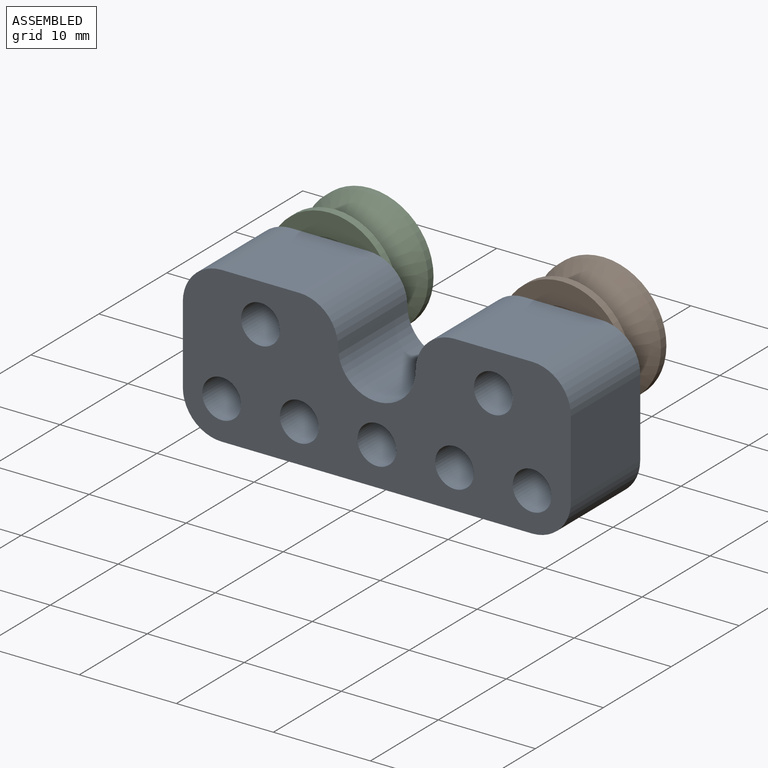
[diagram: assembled view]
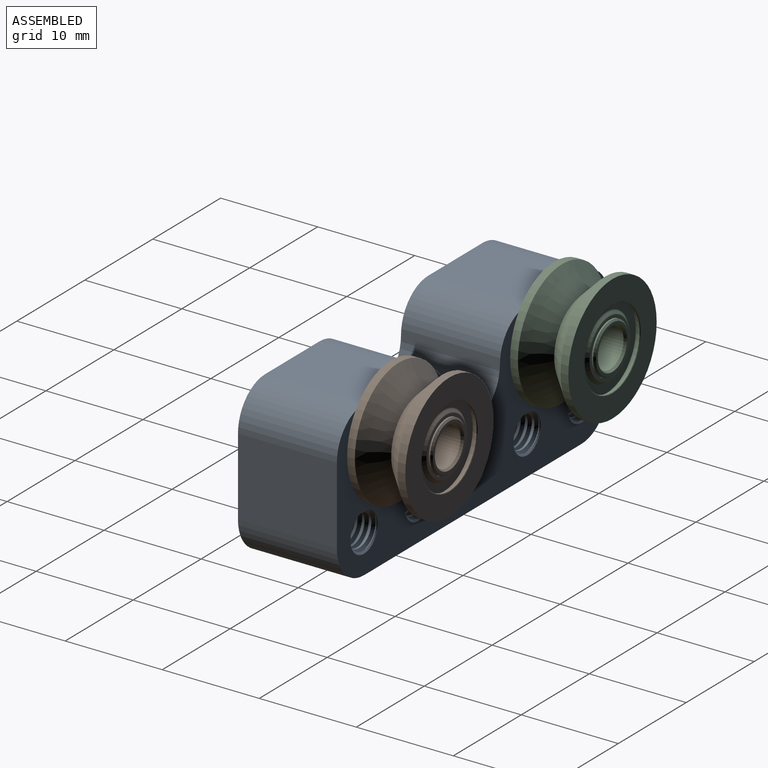
[diagram: assembled view, second angle]
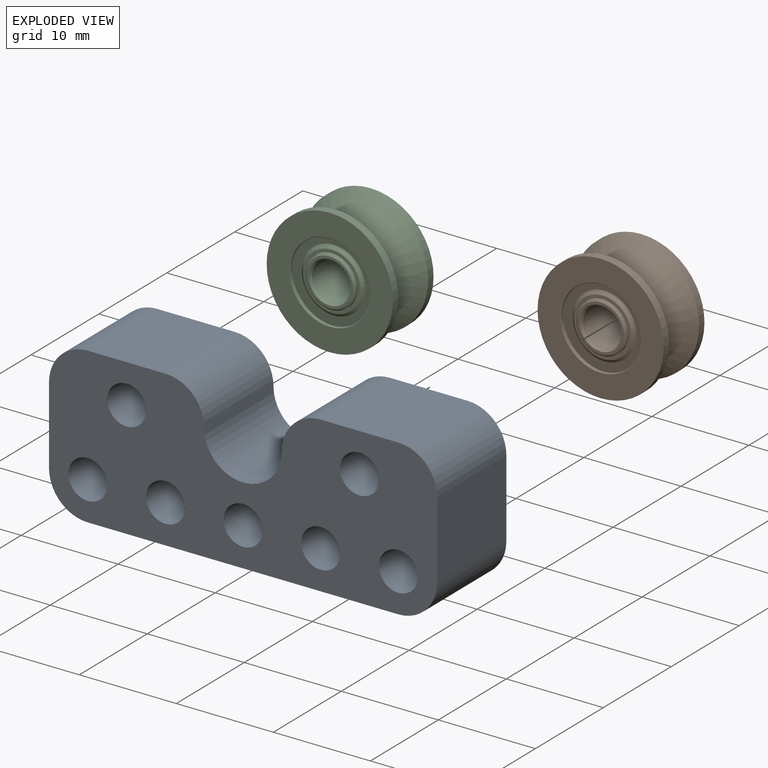
[diagram: exploded view]
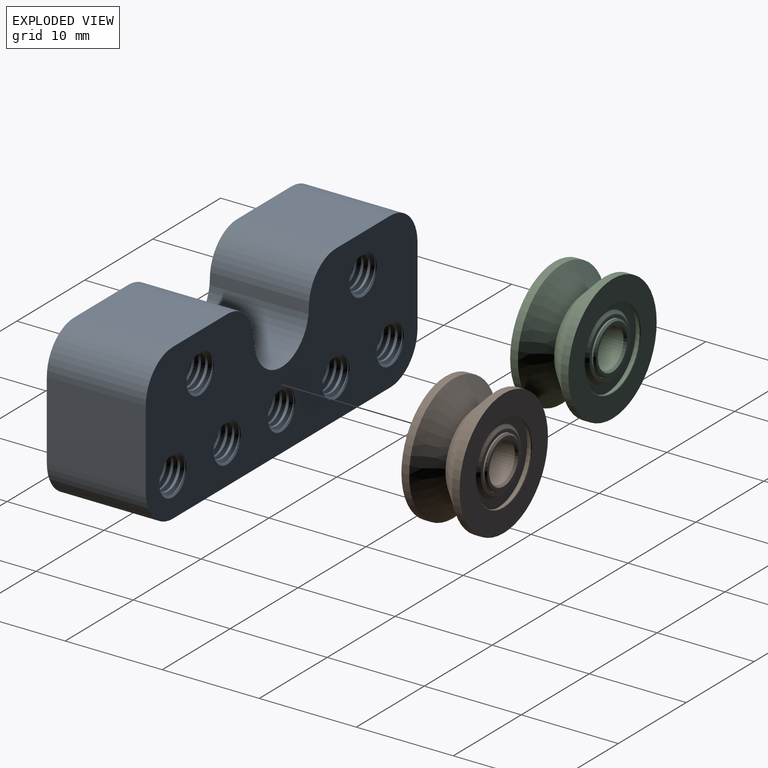
[diagram: exploded view, second angle]
ASSEMBLY  parts=3 mates=2
PART A: 91 faces, bbox 40x10.5x16 mm
  f0: cylinder r=2mm len=4mm, axis (0,-1,0), area 1.1mm2, adj f1,f5,f88,f89
  f1: cylinder r=2mm len=4mm, axis (0,-1,0), area 1.1mm2, adj f0,f2,f88,f89
  f2: cylinder r=2mm len=4mm, axis (0,-1,0), area 1.1mm2, adj f1,f3,f88,f89
  f3: cylinder r=2mm len=4mm, axis (0,-1,0), area 1.1mm2, adj f2,f4,f88,f89
  f4: cylinder r=2mm len=6.93mm, axis (0,-1,0), area 79mm2, adj f3,f61,f88,f89,f90
  f5: cylinder r=2mm len=4mm, axis (0,-1,0), area 0.8mm2, adj f0,f68,f88,f89
  f6: cylinder r=2mm len=4mm, axis (0,-1,0), area 1.1mm2, adj f7,f11,f86,f87
  f7: cylinder r=2mm len=4mm, axis (0,-1,0), area 1.1mm2, adj f6,f8,f86,f87
  f8: cylinder r=2mm len=4mm, axis (0,-1,0), area 1.1mm2, adj f7,f9,f86,f87
  f9: cylinder r=2mm len=4mm, axis (0,-1,0), area 1.1mm2, adj f8,f10,f86,f87
  f10: cylinder r=2mm len=6.93mm, axis (0,-1,0), area 79mm2, adj f9,f59,f86,f87,f90
  f11: cylinder r=2mm len=4mm, axis (0,-1,0), area 0.8mm2, adj f6,f68,f86,f87
  f12: cylinder r=2mm len=4mm, axis (0,-1,0), area 1.1mm2, adj f13,f17,f84,f85
  f13: cylinder r=2mm len=4mm, axis (0,-1,0), area 1.1mm2, adj f12,f14,f84,f85
  f14: cylinder r=2mm len=4mm, axis (0,-1,0), area 1.1mm2, adj f13,f15,f84,f85
  f15: cylinder r=2mm len=4mm, axis (0,-1,0), area 1.1mm2, adj f14,f16,f84,f85
  f16: cylinder r=2mm len=6.93mm, axis (0,-1,0), area 79mm2, adj f15,f57,f84,f85,f90
  f17: cylinder r=2mm len=4mm, axis (0,-1,0), area 0.8mm2, adj f12,f68,f84,f85
  f18: cylinder r=2mm len=4mm, axis (0,-1,0), area 1.1mm2, adj f19,f23,f82,f83
  f19: cylinder r=2mm len=4mm, axis (0,-1,0), area 1.1mm2, adj f18,f20,f82,f83
  f20: cylinder r=2mm len=4mm, axis (0,-1,0), area 1.1mm2, adj f19,f21,f82,f83
  f21: cylinder r=2mm len=4mm, axis (0,-1,0), area 1.1mm2, adj f20,f22,f82,f83
  f22: cylinder r=2mm len=6.93mm, axis (0,-1,0), area 79mm2, adj f21,f55,f82,f83,f90
  f23: cylinder r=2mm len=4mm, axis (0,-1,0), area 0.8mm2, adj f18,f68,f82,f83
  f24: cylinder r=2mm len=4mm, axis (0,-1,0), area 1.1mm2, adj f25,f29,f80,f81
  f25: cylinder r=2mm len=4mm, axis (0,-1,0), area 1.1mm2, adj f24,f26,f80,f81
  f26: cylinder r=2mm len=4mm, axis (0,-1,0), area 1.1mm2, adj f25,f27,f80,f81
  f27: cylinder r=2mm len=4mm, axis (0,-1,0), area 1.1mm2, adj f26,f28,f80,f81
  f28: cylinder r=2mm len=6.93mm, axis (0,-1,0), area 79mm2, adj f27,f53,f80,f81,f90
  f29: cylinder r=2mm len=4mm, axis (0,-1,0), area 0.8mm2, adj f24,f68,f80,f81
  f30: cylinder r=2mm len=4mm, axis (0,-1,0), area 1.1mm2, adj f31,f35,f78,f79
  f31: cylinder r=2mm len=4mm, axis (0,-1,0), area 1.1mm2, adj f30,f32,f78,f79
  f32: cylinder r=2mm len=4mm, axis (0,-1,0), area 1.1mm2, adj f31,f33,f78,f79
  f33: cylinder r=2mm len=4mm, axis (0,-1,0), area 1.1mm2, adj f32,f34,f78,f79
  f34: cylinder r=2mm len=6.93mm, axis (0,-1,0), area 79mm2, adj f33,f51,f78,f79,f90
  f35: cylinder r=2mm len=4mm, axis (0,-1,0), area 0.8mm2, adj f30,f68,f78,f79
  f36: cylinder r=2mm len=4mm, axis (0,-1,0), area 1.1mm2, adj f37,f41,f76,f77
  f37: cylinder r=2mm len=4mm, axis (0,-1,0), area 1.1mm2, adj f36,f38,f76,f77
  f38: cylinder r=2mm len=4mm, axis (0,-1,0), area 1.1mm2, adj f37,f39,f76,f77
  f39: cylinder r=2mm len=4mm, axis (0,-1,0), area 1.1mm2, adj f38,f40,f76,f77
  f40: cylinder r=2mm len=6.93mm, axis (0,-1,0), area 79mm2, adj f39,f49,f76,f77,f90
  f41: cylinder r=2mm len=4mm, axis (0,-1,0), area 0.8mm2, adj f36,f68,f76,f77
  f42: cylinder r=1.65mm len=3.3mm, axis (0,1,0), area 10.2mm2, adj f51,f52,f78,f79
  f43: cylinder r=1.65mm len=3.3mm, axis (0,1,0), area 10.2mm2, adj f55,f56,f82,f83
  f44: cylinder r=1.65mm len=3.3mm, axis (0,1,0), area 10.2mm2, adj f53,f54,f80,f81
  f45: cylinder r=1.65mm len=3.3mm, axis (0,1,0), area 10.2mm2, adj f59,f60,f86,f87
  f46: cylinder r=1.65mm len=3.3mm, axis (0,1,0), area 10.2mm2, adj f57,f58,f84,f85
  f47: cylinder r=1.65mm len=3.3mm, axis (0,1,0), area 10.2mm2, adj f49,f50,f76,f77
  f48: cylinder r=1.65mm len=3.3mm, axis (0,1,0), area 10.2mm2, adj f61,f62,f88,f89
  f49: cone r=2mm half-angle=45deg, axis (0,-1,0), area 3.4mm2, adj f40,f47,f76,f77
  f50: cone r=1.65mm half-angle=45deg, axis (0,1,0), area 3.4mm2, adj f47,f68,f76,f77
  f51: cone r=2mm half-angle=45deg, axis (0,-1,0), area 3.4mm2, adj f34,f42,f78,f79
  f52: cone r=1.65mm half-angle=45deg, axis (0,1,0), area 3.4mm2, adj f42,f68,f78,f79
  f53: cone r=2mm half-angle=45deg, axis (0,-1,0), area 3.4mm2, adj f28,f44,f80,f81
  f54: cone r=1.65mm half-angle=45deg, axis (0,1,0), area 3.4mm2, adj f44,f68,f80,f81
  f55: cone r=2mm half-angle=45deg, axis (0,-1,0), area 3.4mm2, adj f22,f43,f82,f83
  f56: cone r=1.65mm half-angle=45deg, axis (0,1,0), area 3.4mm2, adj f43,f68,f82,f83
  f57: cone r=2mm half-angle=45deg, axis (0,-1,0), area 3.4mm2, adj f16,f46,f84,f85
  f58: cone r=1.65mm half-angle=45deg, axis (0,1,0), area 3.4mm2, adj f46,f68,f84,f85
  f59: cone r=1.65mm half-angle=45deg, axis (0,-1,0), area 3.4mm2, adj f10,f45,f86,f87
  f60: cone r=2mm half-angle=45deg, axis (0,1,0), area 3.4mm2, adj f45,f68,f86,f87
  f61: cone r=2mm half-angle=45deg, axis (0,-1,0), area 3.4mm2, adj f4,f48,f88,f89
  f62: cone r=1.65mm half-angle=45deg, axis (0,1,0), area 3.4mm2, adj f48,f68,f88,f89
  f63: plane 10.2x8mm, normal (0,0,1), area 81.6mm2, adj f68,f69,f73,f90
  f64: plane 10.2x8mm, normal (0,0,1), area 81.6mm2, adj f68,f70,f75,f90
  f65: plane 10.2x8mm, normal (-1,0,0), area 81.6mm2, adj f68,f69,f72,f90
  f66: plane 10.2x8mm, normal (1,0,0), area 81.6mm2, adj f68,f70,f71,f90
  f67: plane 32x10.2mm, normal (0,0,-1), area 326.3mm2, adj f68,f71,f72,f90
  f68: plane 40x16mm, normal (0,1,0), area 474.3mm2, adj f5,f11,f17,f23,f29,f35,f41,f50
  f69: cylinder r=4mm len=10.2mm, axis (0,-1,0), area 64.1mm2, adj f63,f65,f68,f90
  f70: cylinder r=4mm len=10.2mm, axis (0,-1,0), area 64.1mm2, adj f64,f66,f68,f90
  f71: cylinder r=4mm len=10.2mm, axis (0,-1,0), area 64.1mm2, adj f66,f67,f68,f90
  f72: cylinder r=4mm len=10.2mm, axis (0,-1,0), area 64.1mm2, adj f65,f67,f68,f90
  f73: cylinder r=4mm len=10.2mm, axis (0,1,0), area 64.1mm2, adj f63,f68,f74,f90
  f74: cylinder r=4mm len=10.2mm, axis (0,1,0), area 128.1mm2, adj f68,f73,f75,f90
  f75: cylinder r=4mm len=10.2mm, axis (0,1,0), area 64.1mm2, adj f64,f68,f74,f90
  f76: bspline ~4.58x4.31mm, area 24.3mm2, adj f36,f37,f38,f39,f40,f41,f47,f49
  f77: bspline ~4.58x4.42mm, area 24.3mm2, adj f36,f37,f38,f39,f40,f41,f47,f49
  f78: bspline ~4.62x4.31mm, area 25.2mm2, adj f30,f31,f32,f33,f34,f35,f42,f51
  f79: bspline ~4.62x4.42mm, area 25mm2, adj f30,f31,f32,f33,f34,f35,f42,f51
  f80: bspline ~4.62x4.31mm, area 25.2mm2, adj f24,f25,f26,f27,f28,f29,f44,f53
  f81: bspline ~4.62x4.42mm, area 25mm2, adj f24,f25,f26,f27,f28,f29,f44,f53
  f82: bspline ~4.62x4.31mm, area 25.2mm2, adj f18,f19,f20,f21,f22,f23,f43,f55
  f83: bspline ~4.62x4.42mm, area 25mm2, adj f18,f19,f20,f21,f22,f23,f43,f55
  f84: bspline ~4.62x4.31mm, area 25.2mm2, adj f12,f13,f14,f15,f16,f17,f46,f57
  f85: bspline ~4.62x4.42mm, area 25mm2, adj f12,f13,f14,f15,f16,f17,f46,f57
  f86: bspline ~4.62x4.31mm, area 25.2mm2, adj f6,f7,f8,f9,f10,f11,f45,f59
  f87: bspline ~4.62x4.42mm, area 24.9mm2, adj f6,f7,f8,f9,f10,f11,f45,f59
  f88: bspline ~4.62x4.31mm, area 25.2mm2, adj f0,f1,f2,f3,f4,f5,f48,f61
  f89: bspline ~4.62x4.42mm, area 25mm2, adj f0,f1,f2,f3,f4,f5,f48,f61
  f90: plane 40x16mm, normal (0,-1,0), area 474.3mm2, adj f4,f10,f16,f22,f28,f34,f40,f63
PART B: 39 faces, bbox 13x6x13 mm
  f0: cone r=6.5mm half-angle=45deg, axis (0,-1,0), area 105.6mm2, adj f1,f2
  f1: cone r=6.5mm half-angle=45deg, axis (0,1,0), area 105.6mm2, adj f0,f26
  f2: cylinder r=6.5mm len=13mm, axis (0,-1,0), area 32.7mm2, adj f0,f32
  f3: cone r=4.08mm half-angle=45deg, axis (0,1,0), area 1.8mm2, adj f24,f27
  f4: cone r=4.08mm half-angle=45deg, axis (0,-1,0), area 1.8mm2, adj f24,f33
  f5: cone r=4.08mm half-angle=45deg, axis (0,1,0), area 1.8mm2, adj f22,f35
  f6: cone r=4.08mm half-angle=45deg, axis (0,-1,0), area 1.8mm2, adj f22,f32
  f7: cone r=2.43mm half-angle=45deg, axis (0,-1,0), area 3.8mm2, adj f23,f31
  f8: cone r=2.43mm half-angle=45deg, axis (0,1,0), area 3.8mm2, adj f21,f30
  f9: cone r=2.15mm half-angle=30deg, axis (0,-1,0), area 3.9mm2, adj f25,f30
  f10: cone r=2mm half-angle=30deg, axis (0,1,0), area 3.9mm2, adj f25,f31
  f11: cylinder r=2.62mm len=5.25mm, axis (0,-1,0), area 4mm2, adj f28,f38
  f12: cylinder r=2.62mm len=5.25mm, axis (0,1,0), area 4.2mm2, adj f29,f37
  f13: torus R=3.33mm, axis (0,1,0), area 2.4mm2, adj f17,f34
  f14: torus R=2.91mm, axis (0,1,0), area 2.2mm2, adj f17,f29
  f15: torus R=2.91mm, axis (0,-1,0), area 2.2mm2, adj f18,f28
  f16: torus R=3.32mm, axis (0,-1,0), area 2.4mm2, adj f18,f36
  f17: cone r=2.97mm half-angle=45deg, axis (0,-1,0), area 5.9mm2, adj f13,f14
  f18: cone r=3.27mm half-angle=45deg, axis (0,1,0), area 5.6mm2, adj f15,f16
  f19: cylinder r=4.29mm len=8.57mm, axis (0,-1,0), area 8.1mm2, adj f35,f36
  f20: cylinder r=4.29mm len=8.57mm, axis (0,1,0), area 8.1mm2, adj f33,f34
  f21: cylinder r=2.6mm len=5.2mm, axis (0,-1,0), area 6.1mm2, adj f8,f38
  f22: cylinder r=4.08mm len=8.17mm, axis (0,-1,0), area 4.9mm2, adj f5,f6
  f23: cylinder r=2.6mm len=5.2mm, axis (0,1,0), area 6.1mm2, adj f7,f37
  f24: cylinder r=4.08mm len=8.17mm, axis (0,1,0), area 4.9mm2, adj f3,f4
  f25: cylinder r=2mm len=5.48mm, axis (0,1,0), area 68.9mm2, adj f9,f10
  f26: cylinder r=6.5mm len=13mm, axis (0,-1,0), area 32.7mm2, adj f1,f27
  f27: plane 13x13mm, normal (0,1,0), area 79mm2, adj f3,f26
  f28: plane 5.82x5.82mm, normal (0,-1,0), area 5mm2, adj f11,f15
  f29: plane 5.82x5.82mm, normal (0,1,0), area 5mm2, adj f12,f14
  f30: plane 4.86x4.86mm, normal (0,-1,0), area 4mm2, adj f8,f9
  f31: plane 4.86x4.86mm, normal (0,1,0), area 4mm2, adj f7,f10
  f32: plane 13x13mm, normal (0,-1,0), area 79mm2, adj f2,f6
  f33: plane 8.57x8.57mm, normal (0,-1,0), area 4mm2, adj f4,f20
  f34: plane 8.57x8.57mm, normal (0,1,0), area 22.8mm2, adj f13,f20
  f35: plane 8.57x8.57mm, normal (0,1,0), area 4mm2, adj f5,f19
  f36: plane 8.57x8.57mm, normal (0,-1,0), area 23mm2, adj f16,f19
  f37: plane 5.25x5.25mm, normal (0,1,0), area 0.4mm2, adj f12,f23
  f38: plane 5.25x5.25mm, normal (0,-1,0), area 0.4mm2, adj f11,f21
PART C: same geometry as B
PLACE A at identity
PLACE B rot(axis=(1,0,0),180deg) t=(12,10,4)mm
PLACE C rot(axis=(1,0,0),180deg) t=(-12,10,4)mm
MATE fastened C.f0 <-> A.f0  axis (0,-1,0) through (-12,4,4)mm
MATE fastened B.f0 <-> A.f36  axis (0,-1,0) through (12,4,4)mm
